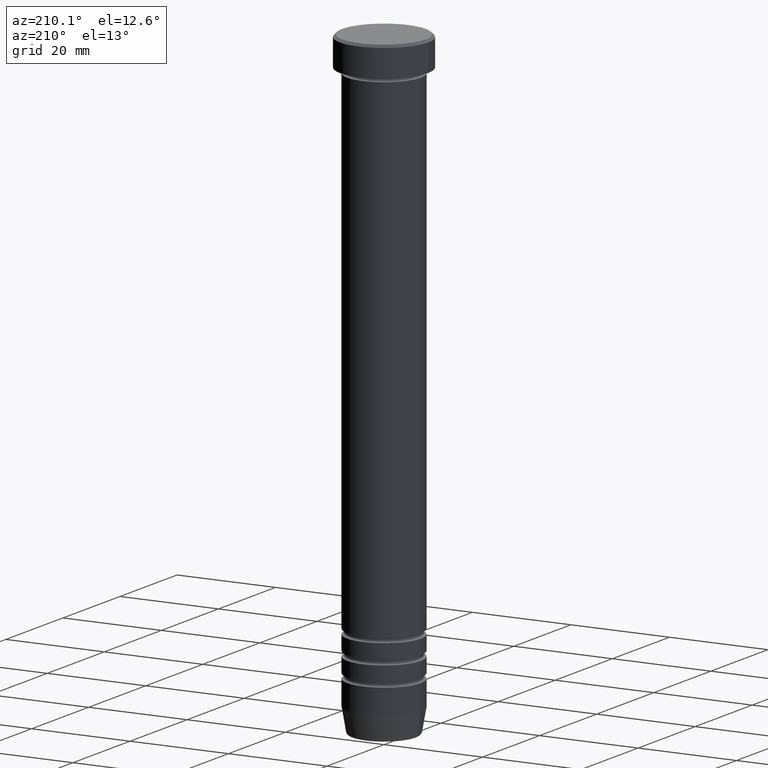
[diagram: clean part render]
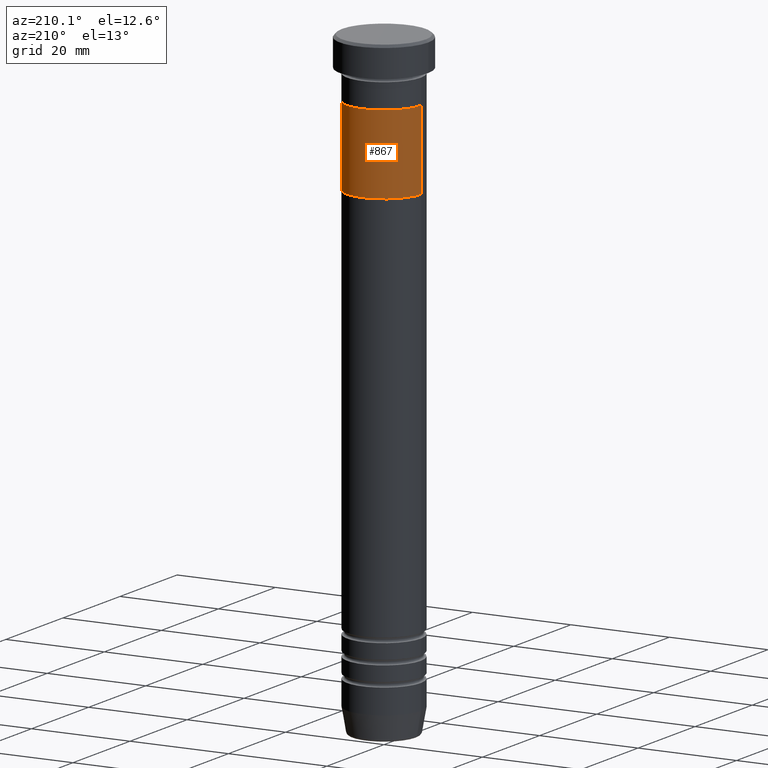
[diagram: same view with one face highlighted and labeled with its STEP entity id]
A machine part, auxiliary view. The second image highlights one B-rep face of the part: STEP entity #867.
In plain terms, the highlighted cylindrical surface (partial cylindrical patch) has radius 7.5 mm, axis along (-0, -0, 1).
Its self-contained STEP definition (entity closure, byte-faithful):
#37 = DIRECTION ( 'NONE',  ( -0.000000000000000000, -0.000000000000000000, 1.000000000000000000 ) ) ;
#53 = EDGE_CURVE ( 'NONE', #856, #476, #625, .T. ) ;
#59 = CARTESIAN_POINT ( 'NONE',  ( 0.000000000000000000, 0.000000000000000000, -28.00000000000000000 ) ) ;
#118 = CARTESIAN_POINT ( 'NONE',  ( 7.500000000000000000, 0.000000000000000000, -28.00000000000000000 ) ) ;
#140 = VERTEX_POINT ( 'NONE', #670 ) ;
#147 = AXIS2_PLACEMENT_3D ( 'NONE', #662, #410, #750 ) ;
#155 = ORIENTED_EDGE ( 'NONE', *, *, #475, .T. ) ;
#168 = DIRECTION ( 'NONE',  ( 1.000000000000000000, 0.000000000000000000, 0.000000000000000000 ) ) ;
#266 = CARTESIAN_POINT ( 'NONE',  ( 7.500000000000000000, 0.000000000000000000, -12.00000000000000000 ) ) ;
#287 = EDGE_CURVE ( 'NONE', #856, #140, #530, .T. ) ;
#304 = ORIENTED_EDGE ( 'NONE', *, *, #661, .F. ) ;
#337 = CIRCLE ( 'NONE', #147, 7.500000000000000000 ) ;
#403 = DIRECTION ( 'NONE',  ( -1.000000000000000000, 0.000000000000000000, 0.000000000000000000 ) ) ;
#410 = DIRECTION ( 'NONE',  ( 0.000000000000000000, 0.000000000000000000, -1.000000000000000000 ) ) ;
#475 = EDGE_CURVE ( 'NONE', #476, #819, #337, .T. ) ;
#476 = VERTEX_POINT ( 'NONE', #1107 ) ;
#530 = CIRCLE ( 'NONE', #899, 7.500000000000000000 ) ;
#585 = CARTESIAN_POINT ( 'NONE',  ( -7.500000000000000000, 9.184850993605147944E-16, -28.00000000000000000 ) ) ;
#625 = LINE ( 'NONE', #892, #928 ) ;
#660 = LINE ( 'NONE', #118, #873 ) ;
#661 = EDGE_CURVE ( 'NONE', #140, #819, #660, .T. ) ;
#662 = CARTESIAN_POINT ( 'NONE',  ( 0.000000000000000000, 0.000000000000000000, -12.00000000000000000 ) ) ;
#670 = CARTESIAN_POINT ( 'NONE',  ( 7.500000000000000000, 0.000000000000000000, -28.00000000000000000 ) ) ;
#672 = FACE_OUTER_BOUND ( 'NONE', #703, .T. ) ;
#703 = EDGE_LOOP ( 'NONE', ( #783, #809, #155, #304 ) ) ;
#750 = DIRECTION ( 'NONE',  ( -1.000000000000000000, 0.000000000000000000, 0.000000000000000000 ) ) ;
#758 = DIRECTION ( 'NONE',  ( 0.000000000000000000, 0.000000000000000000, -1.000000000000000000 ) ) ;
#783 = ORIENTED_EDGE ( 'NONE', *, *, #287, .F. ) ;
#795 = AXIS2_PLACEMENT_3D ( 'NONE', #59, #959, #168 ) ;
#809 = ORIENTED_EDGE ( 'NONE', *, *, #53, .T. ) ;
#819 = VERTEX_POINT ( 'NONE', #266 ) ;
#828 = CARTESIAN_POINT ( 'NONE',  ( 0.000000000000000000, 0.000000000000000000, -28.00000000000000000 ) ) ;
#856 = VERTEX_POINT ( 'NONE', #585 ) ;
#867 = ADVANCED_FACE ( 'NONE', ( #672 ), #1129, .T. ) ;
#873 = VECTOR ( 'NONE', #37, 1000.000000000000000 ) ;
#892 = CARTESIAN_POINT ( 'NONE',  ( -7.500000000000000000, 9.184850993605147944E-16, -28.00000000000000000 ) ) ;
#899 = AXIS2_PLACEMENT_3D ( 'NONE', #828, #758, #403 ) ;
#928 = VECTOR ( 'NONE', #979, 1000.000000000000000 ) ;
#959 = DIRECTION ( 'NONE',  ( -0.000000000000000000, -0.000000000000000000, 1.000000000000000000 ) ) ;
#979 = DIRECTION ( 'NONE',  ( -0.000000000000000000, -0.000000000000000000, 1.000000000000000000 ) ) ;
#1107 = CARTESIAN_POINT ( 'NONE',  ( -7.500000000000000000, 9.184850993605147944E-16, -12.00000000000000000 ) ) ;
#1129 = CYLINDRICAL_SURFACE ( 'NONE', #795, 7.500000000000000000 ) ;